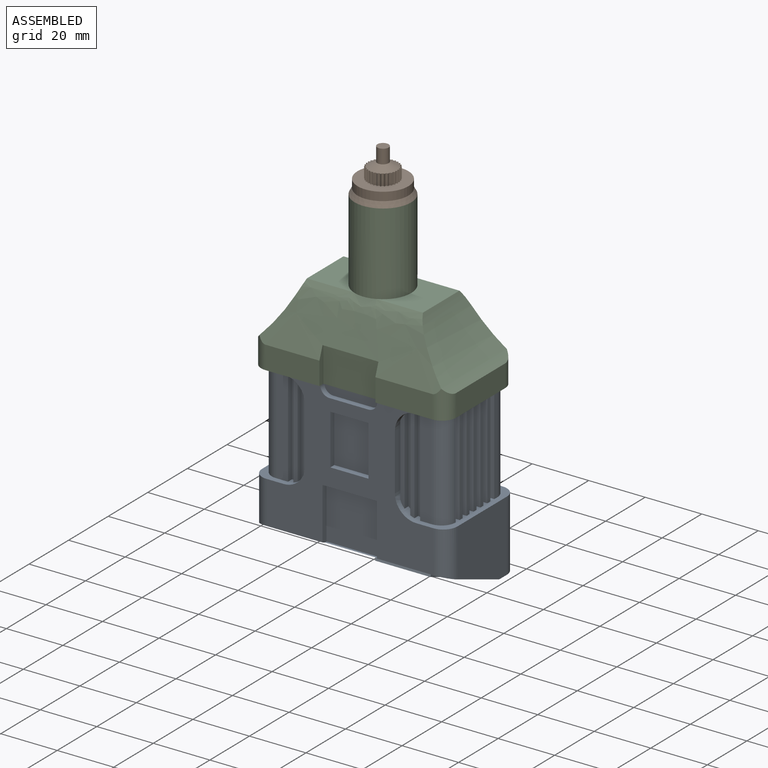
[diagram: assembled view]
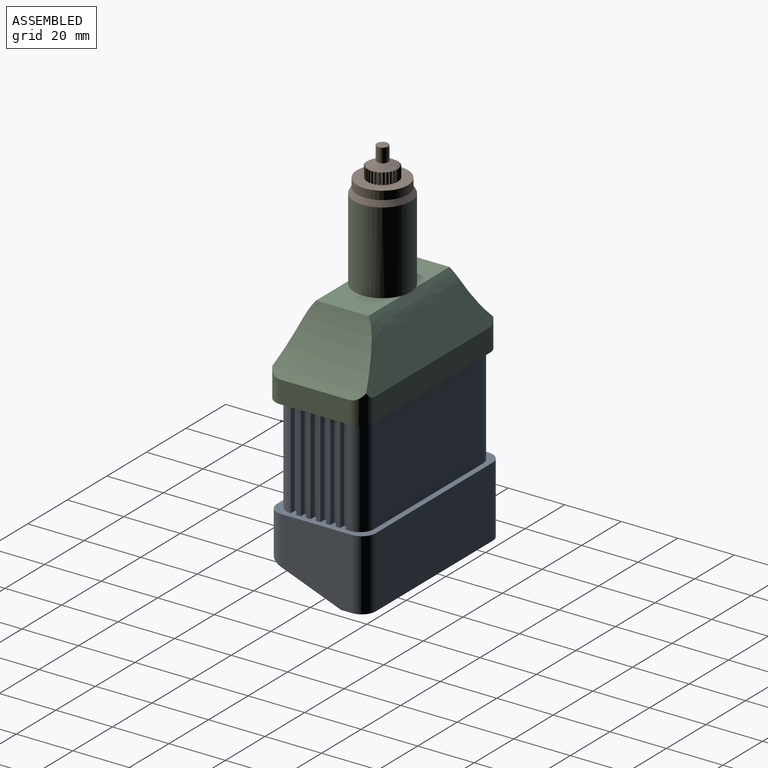
[diagram: assembled view, second angle]
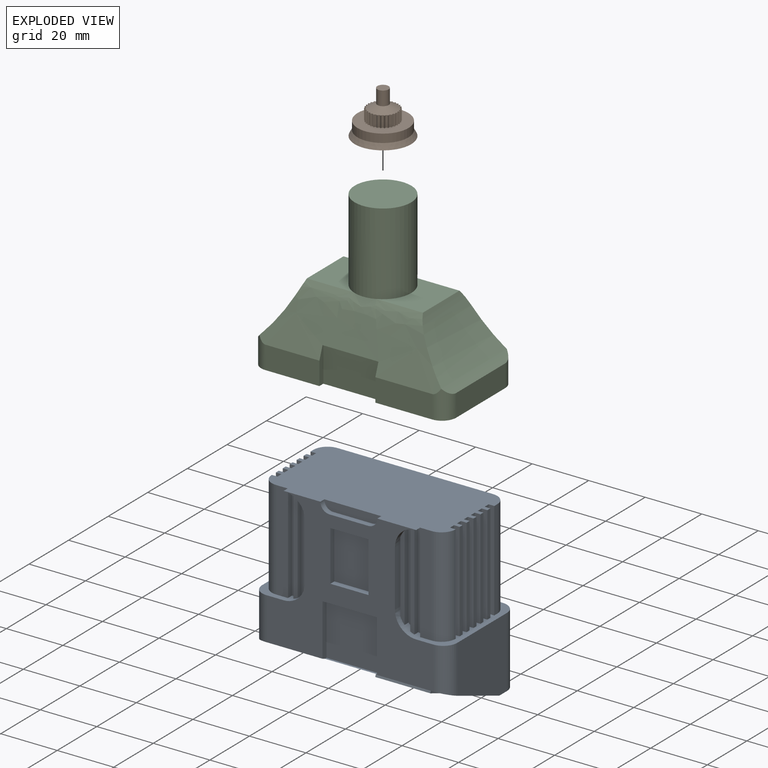
[diagram: exploded view]
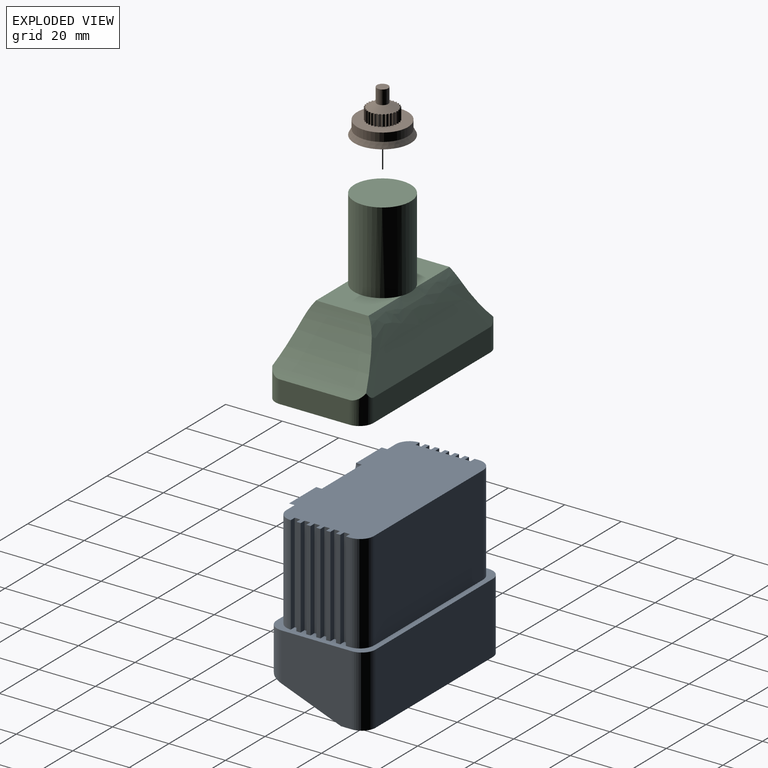
[diagram: exploded view, second angle]
ASSEMBLY  parts=3 mates=2
PART A: 153 faces, bbox 69.1x35x61.1 mm
  f0: plane 35x1.5mm, normal (1,0,0), area 52.5mm2, adj f25,f27,f148,f150
  f1: plane 35x1.5mm, normal (1,0,0), area 52.5mm2, adj f25,f27,f145,f147
  f2: plane 35x1.5mm, normal (1,0,0), area 52.5mm2, adj f25,f27,f142,f144
  f3: plane 35x1.5mm, normal (1,0,0), area 52.5mm2, adj f25,f27,f139,f141
  f4: plane 35x1.5mm, normal (1,0,0), area 52.5mm2, adj f25,f27,f135,f138
  f5: plane 35x1.5mm, normal (1,0,0), area 52.5mm2, adj f25,f27,f116,f136
  f6: plane 35x1.5mm, normal (-1,0,0), area 52.5mm2, adj f25,f27,f115,f132
  f7: plane 35x1.5mm, normal (-1,0,0), area 52.5mm2, adj f25,f27,f129,f133
  f8: plane 35x1.5mm, normal (-1,0,0), area 52.5mm2, adj f25,f27,f126,f130
  f9: plane 35x1.5mm, normal (-1,0,0), area 52.5mm2, adj f25,f27,f123,f127
  f10: plane 35x1.5mm, normal (-1,0,0), area 52.5mm2, adj f25,f27,f120,f124
  f11: plane 35x1.5mm, normal (-1,0,0), area 52.5mm2, adj f25,f27,f117,f121
  f12: plane 35x6.1mm, normal (0,-1,0), area 143.9mm2, adj f25,f27,f30,f110,f111,f112
  f13: plane 34.46x1.5mm, normal (0,-1,0), area 50.9mm2, adj f28,f30,f107,f113
  f14: plane 30.2x1.5mm, normal (0,-1,0), area 42.2mm2, adj f28,f30,f105,f108
  f15: plane 30.2x1.5mm, normal (0,-1,0), area 42.2mm2, adj f31,f33,f99,f102
  f16: plane 34.46x1.5mm, normal (0,-1,0), area 50.9mm2, adj f31,f33,f96,f101
  f17: plane 2x0.47mm, normal (0,0.93,-0.36), area 1mm2, adj f19,f23,f85,f89
  f18: plane 2x0.47mm, normal (0,-0.93,0.36), area 1mm2, adj f19,f23,f85,f89
  f19: plane 4.84x2.24mm, normal (-1,0,0), area 2.5mm2, adj f17,f18,f23,f89
  f20: plane 14.39x7.3mm, normal (0,-0.36,-0.93), area 112.4mm2, adj f85,f86,f87,f88
  f21: plane 69.05x8.82mm, normal (0,0,-1), area 471.6mm2, adj f23,f48,f49,f50,f51,f53,f54,f55
  f22: plane 59.05x50.03mm, normal (0,-1,0), area 1396.5mm2, adj f23,f25,f27,f28,f29,f30,f31,f32
  f23: plane 69.05x26.18mm, normal (0,-0.36,-0.93), area 1304.2mm2, adj f17,f18,f19,f21,f22,f39,f41,f42
  f24: plane 35x4.22mm, normal (0,-1,0), area 147.7mm2, adj f25,f27,f31,f33,f97,f104
  f25: plane 65.05x33mm, normal (0,0,1), area 2000.5mm2, adj f0,f1,f2,f3,f4,f5,f6,f7
  f26: plane 55.05x35mm, normal (0,1,0), area 1926.8mm2, adj f25,f27,f115,f116
  f27: plane 69.05x35mm, normal (0,0,1), area 354.5mm2, adj f0,f1,f2,f3,f4,f5,f6,f7
  f28: cylinder r=7.5mm len=7.5mm, axis (0,1,0), area 38.2mm2, adj f13,f14,f22,f27,f29,f105,f106,f107
  f29: plane 20x4mm, normal (1,0,0), area 80mm2, adj f22,f28,f30,f106
  f30: cylinder r=7.5mm len=7.5mm, axis (0,1,0), area 34.1mm2, adj f12,f13,f14,f22,f25,f29,f105,f106
  f31: cylinder r=7.5mm len=7.5mm, axis (0,1,0), area 37.9mm2, adj f15,f16,f22,f24,f25,f32,f96,f97
  f32: plane 20x4mm, normal (-1,0,0), area 80mm2, adj f22,f31,f33,f100
  f33: cylinder r=7.5mm len=7.5mm, axis (0,1,0), area 37.9mm2, adj f15,f16,f22,f24,f27,f32,f96,f97
  f34: plane 17.8x2mm, normal (1,0,0), area 35.6mm2, adj f22,f35,f37,f38
  f35: plane 13.5x2mm, normal (0,0,1), area 27mm2, adj f22,f34,f36,f38
  f36: plane 17.8x2mm, normal (-1,0,0), area 35.6mm2, adj f22,f35,f37,f38
  f37: plane 13.5x2mm, normal (0,0,-1), area 27mm2, adj f22,f34,f36,f38
  f38: plane 17.8x13.5mm, normal (0,-1,0), area 240.3mm2, adj f34,f35,f36,f37
  f39: plane 18.85x2mm, normal (-1,0,0), area 37.4mm2, adj f22,f23,f40,f42,f43
  f40: plane 19.25x2mm, normal (0,0,-1), area 38.5mm2, adj f22,f39,f41,f43
  f41: plane 18.85x2mm, normal (1,0,0), area 37.4mm2, adj f22,f23,f40,f42,f43
  f42: plane 19.25x0.77mm, normal (0,0,1), area 14.9mm2, adj f23,f39,f41,f43
  f43: plane 19.25x18.85mm, normal (0,-1,0), area 362.9mm2, adj f39,f40,f41,f42
  f44: cylinder r=3.2mm len=3.2mm, axis (0,-1,0), area 10.1mm2, adj f22,f25,f45,f47
  f45: plane 13.76x2mm, normal (0,0,1), area 27.5mm2, adj f22,f44,f46,f47
  f46: cylinder r=3.2mm len=3.2mm, axis (0,-1,0), area 10.1mm2, adj f22,f25,f45,f47
  f47: plane 20.16x3.2mm, normal (0,-1,0), area 60.1mm2, adj f25,f44,f45,f46
  f48: plane 6.65x5mm, normal (0,-1,0), area 33.3mm2, adj f21,f49,f51,f52
  f49: cylinder r=1.43mm len=5mm, axis (0,0,-1), area 22.4mm2, adj f21,f48,f50,f52
  f50: plane 6.65x5mm, normal (0,1,0), area 33.3mm2, adj f21,f49,f51,f52
  f51: cylinder r=1.43mm len=5mm, axis (0,0,-1), area 22.4mm2, adj f21,f48,f50,f52
  f52: plane 9.5x2.85mm, normal (0,0,-1), area 25.3mm2, adj f48,f49,f50,f51
  f53: plane 6.65x5mm, normal (0,-1,0), area 33.3mm2, adj f21,f54,f56,f57
  f54: cylinder r=1.43mm len=5mm, axis (0,0,-1), area 22.4mm2, adj f21,f53,f55,f57
  f55: plane 6.65x5mm, normal (0,1,0), area 33.3mm2, adj f21,f54,f56,f57
  f56: cylinder r=1.43mm len=5mm, axis (0,0,-1), area 22.4mm2, adj f21,f53,f55,f57
  f57: plane 9.5x2.85mm, normal (0,0,-1), area 25.3mm2, adj f53,f54,f55,f56
  f58: plane 6.65x5mm, normal (0,-1,0), area 33.3mm2, adj f21,f59,f61,f62
  f59: cylinder r=1.43mm len=5mm, axis (0,0,-1), area 22.4mm2, adj f21,f58,f60,f62
  f60: plane 6.65x5mm, normal (0,1,0), area 33.3mm2, adj f21,f59,f61,f62
  f61: cylinder r=1.43mm len=5mm, axis (0,0,-1), area 22.4mm2, adj f21,f58,f60,f62
  f62: plane 9.5x2.85mm, normal (0,0,-1), area 25.3mm2, adj f58,f59,f60,f61
  f63: plane 6.65x5mm, normal (0,-1,0), area 33.2mm2, adj f21,f64,f66,f67
  f64: cylinder r=1.43mm len=5mm, axis (0,0,-1), area 22.4mm2, adj f21,f63,f65,f67
  f65: plane 6.65x5mm, normal (0,1,0), area 33.2mm2, adj f21,f64,f66,f67
  f66: cylinder r=1.43mm len=5mm, axis (0,0,-1), area 22.4mm2, adj f21,f63,f65,f67
  f67: plane 9.5x2.85mm, normal (0,0,-1), area 25.3mm2, adj f63,f64,f65,f66
  f68: plane 6.65x5mm, normal (0,-1,0), area 33.3mm2, adj f21,f69,f71,f72
  f69: cylinder r=1.43mm len=5mm, axis (0,0,-1), area 22.4mm2, adj f21,f68,f70,f72
  f70: plane 6.65x5mm, normal (0,1,0), area 33.3mm2, adj f21,f69,f71,f72
  f71: cylinder r=1.43mm len=5mm, axis (0,0,-1), area 22.4mm2, adj f21,f68,f70,f72
  f72: plane 9.5x2.85mm, normal (0,0,-1), area 25.3mm2, adj f68,f69,f70,f71
  f73: plane 25x25mm, normal (-1,0,0), area 539.6mm2, adj f21,f23,f27,f93,f95
  f74: plane 25x25mm, normal (1,0,0), area 539.6mm2, adj f21,f23,f27,f92,f94
  f75: plane 59.05x25mm, normal (0,1,0), area 1476.3mm2, adj f21,f27,f92,f93
  f76: plane 6.58x0.93mm, normal (0,0.93,-0.36), area 6.6mm2, adj f23,f77,f83,f84
  f77: plane 2.4x2.11mm, normal (-1,0,0), area 3mm2, adj f23,f76,f78,f90,f91
  f78: plane 6.35x1.4mm, normal (0,0.93,-0.36), area 9.5mm2, adj f23,f77,f79,f91
  f79: plane 2.4x2.11mm, normal (1,0,0), area 3mm2, adj f23,f78,f80,f90,f91
  f80: plane 6.58x0.93mm, normal (0,0.93,-0.36), area 6.6mm2, adj f23,f79,f81,f84
  f81: plane 22.32x9.3mm, normal (1,0,0), area 23.5mm2, adj f23,f80,f82,f84
  f82: plane 19.5x0.93mm, normal (0,-0.93,0.36), area 19.5mm2, adj f23,f81,f83,f84
  f83: plane 22.32x9.3mm, normal (-1,0,0), area 23.5mm2, adj f23,f76,f82,f84
  f84: plane 21.96x19.5mm, normal (0,-0.36,-0.93), area 458.3mm2, adj f76,f80,f81,f82,f83,f90
  f85: plane 14.75x6.41mm, normal (-1,0,0), area 12.9mm2, adj f17,f18,f20,f23,f86,f88,f89
  f86: plane 7.3x0.93mm, normal (0,0.93,-0.36), area 7.3mm2, adj f20,f23,f85,f87
  f87: plane 14.75x6.41mm, normal (1,0,0), area 15.4mm2, adj f20,f23,f86,f88
  f88: plane 7.3x0.93mm, normal (0,-0.93,0.36), area 7.3mm2, adj f20,f23,f85,f87
  f89: plane 4.66x2mm, normal (0,-0.36,-0.93), area 10mm2, adj f17,f18,f19,f85
  f90: plane 6.35x0.47mm, normal (0,-0.93,0.36), area 3.2mm2, adj f77,f79,f84,f91
  f91: plane 6.35x1.87mm, normal (0,-0.36,-0.93), area 12.7mm2, adj f77,f78,f79,f90
  f92: cylinder r=5mm len=25mm, axis (0,0,-1), area 196.3mm2, adj f21,f27,f74,f75
  f93: cylinder r=5mm len=25mm, axis (0,0,-1), area 196.3mm2, adj f21,f27,f73,f75
  f94: cylinder r=5mm len=16.94mm, axis (0,0,-1), area 123.5mm2, adj f22,f23,f27,f74
  f95: cylinder r=5mm len=16.94mm, axis (0,0,-1), area 123.5mm2, adj f22,f23,f27,f73
  f96: plane 34.46x2mm, normal (-1,0,0), area 68.9mm2, adj f16,f31,f33,f98
  f97: plane 35x2mm, normal (1,0,0), area 70mm2, adj f24,f31,f33,f98
  f98: plane 35x1.88mm, normal (0,-1,0), area 65.5mm2, adj f31,f33,f96,f97
  f99: plane 25.39x2mm, normal (1,0,0), area 50.8mm2, adj f15,f31,f33,f100
  f100: plane 25.39x0.5mm, normal (0,-1,0), area 11.8mm2, adj f31,f32,f33,f99
  f101: plane 33.27x2mm, normal (1,0,0), area 66.5mm2, adj f16,f31,f33,f103
  f102: plane 30.2x2mm, normal (-1,0,0), area 60.4mm2, adj f15,f31,f33,f103
  f103: plane 33.27x2mm, normal (0,-1,0), area 63.8mm2, adj f31,f33,f101,f102
  f104: cylinder r=5mm len=35mm, axis (0,0,1), area 274.9mm2, adj f24,f25,f27,f118
  f105: plane 25.39x2mm, normal (-1,0,0), area 50.8mm2, adj f14,f28,f30,f106
  f106: plane 25.39x0.5mm, normal (0,-1,0), area 11.8mm2, adj f28,f29,f30,f105
  f107: plane 33.27x2mm, normal (-1,0,0), area 66.5mm2, adj f13,f28,f30,f109
  f108: plane 30.2x2mm, normal (1,0,0), area 60.4mm2, adj f14,f28,f30,f109
  f109: plane 33.27x2mm, normal (0,-1,0), area 63.8mm2, adj f28,f30,f107,f108
  f110: cylinder r=5mm len=35mm, axis (0,0,-1), area 274.9mm2, adj f12,f25,f27,f151
  f111: plane 34.73x2mm, normal (-1,0,0), area 69.5mm2, adj f12,f28,f112,f114
  f112: plane 2x2mm, normal (0,0,-1), area 4mm2, adj f12,f111,f113,f114
  f113: plane 34.46x2mm, normal (1,0,0), area 68.9mm2, adj f13,f28,f112,f114
  f114: plane 34.73x2mm, normal (0,-1,0), area 69.3mm2, adj f28,f111,f112,f113
  f115: cylinder r=5mm len=35mm, axis (0,0,-1), area 274.9mm2, adj f6,f25,f26,f27
  f116: cylinder r=5mm len=35mm, axis (0,0,1), area 274.9mm2, adj f5,f25,f26,f27
  f117: plane 35x2mm, normal (0,-1,0), area 70mm2, adj f11,f25,f27,f119
  f118: plane 35x2mm, normal (0,1,0), area 70mm2, adj f25,f27,f104,f119
  f119: plane 35x2mm, normal (-1,0,0), area 70mm2, adj f25,f27,f117,f118
  f120: plane 35x2mm, normal (0,-1,0), area 70mm2, adj f10,f25,f27,f122
  f121: plane 35x2mm, normal (0,1,0), area 70mm2, adj f11,f25,f27,f122
  f122: plane 35x2mm, normal (-1,0,0), area 70mm2, adj f25,f27,f120,f121
  f123: plane 35x2mm, normal (0,-1,0), area 70mm2, adj f9,f25,f27,f125
  f124: plane 35x2mm, normal (0,1,0), area 70mm2, adj f10,f25,f27,f125
  f125: plane 35x2mm, normal (-1,0,0), area 70mm2, adj f25,f27,f123,f124
  f126: plane 35x2mm, normal (0,-1,0), area 70mm2, adj f8,f25,f27,f128
  f127: plane 35x2mm, normal (0,1,0), area 70mm2, adj f9,f25,f27,f128
  f128: plane 35x2mm, normal (-1,0,0), area 70mm2, adj f25,f27,f126,f127
  f129: plane 35x2mm, normal (0,-1,0), area 70mm2, adj f7,f25,f27,f131
  f130: plane 35x2mm, normal (0,1,0), area 70mm2, adj f8,f25,f27,f131
  f131: plane 35x2mm, normal (-1,0,0), area 70mm2, adj f25,f27,f129,f130
  f132: plane 35x2mm, normal (0,-1,0), area 70mm2, adj f6,f25,f27,f134
  f133: plane 35x2mm, normal (0,1,0), area 70mm2, adj f7,f25,f27,f134
  f134: plane 35x2mm, normal (-1,0,0), area 70mm2, adj f25,f27,f132,f133
  f135: plane 35x2mm, normal (0,1,0), area 70mm2, adj f4,f25,f27,f137
  f136: plane 35x2mm, normal (0,-1,0), area 70mm2, adj f5,f25,f27,f137
  f137: plane 35x2mm, normal (1,0,0), area 70mm2, adj f25,f27,f135,f136
  f138: plane 35x2mm, normal (0,-1,0), area 70mm2, adj f4,f25,f27,f140
  f139: plane 35x2mm, normal (0,1,0), area 70mm2, adj f3,f25,f27,f140
  f140: plane 35x2mm, normal (1,0,0), area 70mm2, adj f25,f27,f138,f139
  f141: plane 35x2mm, normal (0,-1,0), area 70mm2, adj f3,f25,f27,f143
  f142: plane 35x2mm, normal (0,1,0), area 70mm2, adj f2,f25,f27,f143
  f143: plane 35x2mm, normal (1,0,0), area 70mm2, adj f25,f27,f141,f142
  f144: plane 35x2mm, normal (0,-1,0), area 70mm2, adj f2,f25,f27,f146
  f145: plane 35x2mm, normal (0,1,0), area 70mm2, adj f1,f25,f27,f146
  f146: plane 35x2mm, normal (1,0,0), area 70mm2, adj f25,f27,f144,f145
  f147: plane 35x2mm, normal (0,-1,0), area 70mm2, adj f1,f25,f27,f149
  f148: plane 35x2mm, normal (0,1,0), area 70mm2, adj f0,f25,f27,f149
  f149: plane 35x2mm, normal (1,0,0), area 70mm2, adj f25,f27,f147,f148
  f150: plane 35x2mm, normal (0,-1,0), area 70mm2, adj f0,f25,f27,f152
  f151: plane 35x2mm, normal (0,1,0), area 70mm2, adj f25,f27,f110,f152
  f152: plane 35x2mm, normal (1,0,0), area 70mm2, adj f25,f27,f150,f151
PART B: 186 faces, bbox 20x20x15.4 mm
  f0: plane 0.53x0.47mm, normal (0,0,1), area 0.1mm2, adj f119,f120,f133
  f1: plane 0.51x0.51mm, normal (0,0,1), area 0.1mm2, adj f116,f117,f131
  f2: plane 0.54x0.47mm, normal (0,0,1), area 0.1mm2, adj f113,f114,f129
  f3: plane 0.54x0.47mm, normal (0,0,1), area 0.1mm2, adj f110,f111,f127
  f4: plane 0.51x0.51mm, normal (0,0,1), area 0.1mm2, adj f107,f108,f125
  f5: plane 0.52x0.47mm, normal (0,0,1), area 0.1mm2, adj f104,f105,f183
  f6: plane 0.51x0.51mm, normal (0,0,1), area 0.1mm2, adj f101,f102,f181
  f7: plane 0.53x0.47mm, normal (0,0,1), area 0.1mm2, adj f98,f99,f179
  f8: plane 0.52x0.49mm, normal (0,0,1), area 0.1mm2, adj f95,f96,f177
  f9: plane 0.53x0.5mm, normal (0,0,1), area 0.1mm2, adj f92,f93,f175
  f10: plane 0.54x0.45mm, normal (0,0,1), area 0.1mm2, adj f89,f90,f173
  f11: plane 0.53x0.49mm, normal (0,0,1), area 0.1mm2, adj f86,f87,f171
  f12: plane 0.51x0.49mm, normal (0,0,1), area 0.1mm2, adj f83,f84,f169
  f13: plane 0.51x0.49mm, normal (0,0,1), area 0.1mm2, adj f80,f81,f167
  f14: plane 0.52x0.49mm, normal (0,0,1), area 0.1mm2, adj f77,f78,f165
  f15: plane 0.53x0.47mm, normal (0,0,1), area 0.1mm2, adj f74,f75,f163
  f16: plane 0.51x0.51mm, normal (0,0,1), area 0.1mm2, adj f71,f72,f161
  f17: plane 0.54x0.47mm, normal (0,0,1), area 0.1mm2, adj f68,f69,f159
  f18: plane 0.54x0.47mm, normal (0,0,1), area 0.1mm2, adj f65,f66,f157
  f19: plane 0.51x0.51mm, normal (0,0,1), area 0.1mm2, adj f62,f63,f155
  f20: plane 0.52x0.47mm, normal (0,0,1), area 0.1mm2, adj f59,f60,f153
  f21: plane 0.51x0.51mm, normal (0,0,1), area 0.1mm2, adj f56,f57,f151
  f22: plane 0.53x0.47mm, normal (0,0,1), area 0.1mm2, adj f53,f54,f149
  f23: plane 0.52x0.49mm, normal (0,0,1), area 0.1mm2, adj f50,f51,f147
  f24: plane 0.53x0.5mm, normal (0,0,1), area 0.1mm2, adj f47,f48,f145
  f25: plane 0.54x0.45mm, normal (0,0,1), area 0.1mm2, adj f44,f45,f143
  f26: plane 0.53x0.49mm, normal (0,0,1), area 0.1mm2, adj f41,f42,f141
  f27: plane 0.51x0.49mm, normal (0,0,1), area 0.1mm2, adj f38,f39,f139
  f28: plane 0.51x0.49mm, normal (0,0,1), area 0.1mm2, adj f35,f36,f137
  f29: plane 20x20mm, normal (0,0,-1), area 314.2mm2, adj f30
  f30: cone r=10mm half-angle=27.8deg, axis (0,0,-1), area 128.2mm2, adj f29,f31
  f31: cylinder r=9mm len=18mm, axis (0,0,-1), area 169.6mm2, adj f30,f32
  f32: plane 18x18mm, normal (0,0,1), area 172.4mm2, adj f31,f33,f34,f35,f36,f37,f38,f39
  f33: plane 4x0.49mm, normal (0.31,0.95,0), area 2.1mm2, adj f32,f34,f122,f123
  f34: cylinder r=5mm len=4mm, axis (0,0,-1), area 2.1mm2, adj f32,f33,f35,f136
  f35: plane 4x0.44mm, normal (0.81,-0.59,0), area 2.2mm2, adj f28,f32,f34,f36
  f36: plane 4x0.51mm, normal (0.1,0.99,0), area 2.1mm2, adj f28,f32,f35,f37
  f37: cylinder r=5mm len=4mm, axis (0,0,-1), area 2.1mm2, adj f32,f36,f38,f138
  f38: plane 4x0.49mm, normal (0.91,-0.41,0), area 2.2mm2, adj f27,f32,f37,f39
  f39: plane 4x0.51mm, normal (-0.1,0.99,0), area 2.1mm2, adj f27,f32,f38,f40
  f40: cylinder r=5mm len=4mm, axis (0,0,-1), area 2.1mm2, adj f32,f39,f41,f140
  f41: plane 4x0.53mm, normal (0.98,-0.21,0), area 2.2mm2, adj f26,f32,f40,f42
  f42: plane 4x0.49mm, normal (-0.31,0.95,0), area 2.1mm2, adj f26,f32,f41,f43
  f43: cylinder r=5mm len=4mm, axis (0,0,-1), area 2.1mm2, adj f32,f42,f44,f142
  f44: plane 4x0.54mm, normal (1,0,0), area 2.2mm2, adj f25,f32,f43,f45
  f45: plane 4x0.45mm, normal (-0.5,0.87,0), area 2.1mm2, adj f25,f32,f44,f46
  f46: cylinder r=5mm len=4mm, axis (0,0,-1), area 2.1mm2, adj f32,f45,f47,f144
  f47: plane 4x0.53mm, normal (0.98,0.21,0), area 2.2mm2, adj f24,f32,f46,f48
  f48: plane 4x0.38mm, normal (-0.67,0.74,0), area 2.1mm2, adj f24,f32,f47,f49
  f49: cylinder r=5mm len=4mm, axis (0,0,-1), area 2.1mm2, adj f32,f48,f50,f146
  f50: plane 4x0.49mm, normal (0.91,0.41,0), area 2.2mm2, adj f23,f32,f49,f51
  f51: plane 4x0.42mm, normal (-0.81,0.59,0), area 2.1mm2, adj f23,f32,f50,f52
  f52: cylinder r=5mm len=4mm, axis (0,0,-1), area 2.1mm2, adj f32,f51,f53,f148
  f53: plane 4x0.44mm, normal (0.81,0.59,0), area 2.2mm2, adj f22,f32,f52,f54
  f54: plane 4x0.47mm, normal (-0.91,0.41,0), area 2.1mm2, adj f22,f32,f53,f55
  f55: cylinder r=5mm len=4mm, axis (0,0,-1), area 2.1mm2, adj f32,f54,f56,f150
  f56: plane 4x0.4mm, normal (0.67,0.74,0), area 2.2mm2, adj f21,f32,f55,f57
  f57: plane 4x0.51mm, normal (-0.98,0.21,0), area 2.1mm2, adj f21,f32,f56,f58
  f58: cylinder r=5mm len=4mm, axis (0,0,-1), area 2.1mm2, adj f32,f57,f59,f152
  f59: plane 4x0.47mm, normal (0.5,0.87,0), area 2.2mm2, adj f20,f32,f58,f60
  f60: plane 4x0.52mm, normal (-1,0,0), area 2.1mm2, adj f20,f32,f59,f61
  f61: cylinder r=5mm len=4mm, axis (0,0,-1), area 2.1mm2, adj f32,f60,f62,f154
  f62: plane 4x0.51mm, normal (0.31,0.95,0), area 2.2mm2, adj f19,f32,f61,f63
  f63: plane 4x0.51mm, normal (-0.98,-0.21,0), area 2.1mm2, adj f19,f32,f62,f64
  f64: cylinder r=5mm len=4mm, axis (0,0,-1), area 2.1mm2, adj f32,f63,f65,f156
  f65: plane 4x0.54mm, normal (0.1,0.99,0), area 2.2mm2, adj f18,f32,f64,f66
  f66: plane 4x0.47mm, normal (-0.91,-0.41,0), area 2.1mm2, adj f18,f32,f65,f67
  f67: cylinder r=5mm len=4mm, axis (0,0,-1), area 2.1mm2, adj f32,f66,f68,f158
  f68: plane 4x0.54mm, normal (-0.1,0.99,0), area 2.2mm2, adj f17,f32,f67,f69
  f69: plane 4x0.42mm, normal (-0.81,-0.59,0), area 2.1mm2, adj f17,f32,f68,f70
  f70: cylinder r=5mm len=4mm, axis (0,0,-1), area 2.1mm2, adj f32,f69,f71,f160
  f71: plane 4x0.51mm, normal (-0.31,0.95,0), area 2.2mm2, adj f16,f32,f70,f72
  f72: plane 4x0.38mm, normal (-0.67,-0.74,0), area 2.1mm2, adj f16,f32,f71,f73
  f73: cylinder r=5mm len=4mm, axis (0,0,-1), area 2.1mm2, adj f32,f72,f74,f162
  f74: plane 4x0.47mm, normal (-0.5,0.87,0), area 2.2mm2, adj f15,f32,f73,f75
  f75: plane 4x0.45mm, normal (-0.5,-0.87,0), area 2.1mm2, adj f15,f32,f74,f76
  f76: cylinder r=5mm len=4mm, axis (0,0,-1), area 2.1mm2, adj f32,f75,f77,f164
  f77: plane 4x0.4mm, normal (-0.67,0.74,0), area 2.2mm2, adj f14,f32,f76,f78
  f78: plane 4x0.49mm, normal (-0.31,-0.95,0), area 2.1mm2, adj f14,f32,f77,f79
  f79: cylinder r=5mm len=4mm, axis (0,0,-1), area 2.1mm2, adj f32,f78,f80,f166
  f80: plane 4x0.44mm, normal (-0.81,0.59,0), area 2.2mm2, adj f13,f32,f79,f81
  f81: plane 4x0.51mm, normal (-0.1,-0.99,0), area 2.1mm2, adj f13,f32,f80,f82
  f82: cylinder r=5mm len=4mm, axis (0,0,-1), area 2.1mm2, adj f32,f81,f83,f168
  f83: plane 4x0.49mm, normal (-0.91,0.41,0), area 2.2mm2, adj f12,f32,f82,f84
  f84: plane 4x0.51mm, normal (0.1,-0.99,0), area 2.1mm2, adj f12,f32,f83,f85
  f85: cylinder r=5mm len=4mm, axis (0,0,-1), area 2.1mm2, adj f32,f84,f86,f170
  f86: plane 4x0.53mm, normal (-0.98,0.21,0), area 2.2mm2, adj f11,f32,f85,f87
  f87: plane 4x0.49mm, normal (0.31,-0.95,0), area 2.1mm2, adj f11,f32,f86,f88
  f88: cylinder r=5mm len=4mm, axis (0,0,-1), area 2.1mm2, adj f32,f87,f89,f172
  f89: plane 4x0.54mm, normal (-1,0,0), area 2.2mm2, adj f10,f32,f88,f90
  f90: plane 4x0.45mm, normal (0.5,-0.87,0), area 2.1mm2, adj f10,f32,f89,f91
  f91: cylinder r=5mm len=4mm, axis (0,0,-1), area 2.1mm2, adj f32,f90,f92,f174
  f92: plane 4x0.53mm, normal (-0.98,-0.21,0), area 2.2mm2, adj f9,f32,f91,f93
  f93: plane 4x0.38mm, normal (0.67,-0.74,0), area 2.1mm2, adj f9,f32,f92,f94
  f94: cylinder r=5mm len=4mm, axis (0,0,-1), area 2.1mm2, adj f32,f93,f95,f176
  f95: plane 4x0.49mm, normal (-0.91,-0.41,0), area 2.2mm2, adj f8,f32,f94,f96
  f96: plane 4x0.42mm, normal (0.81,-0.59,0), area 2.1mm2, adj f8,f32,f95,f97
  f97: cylinder r=5mm len=4mm, axis (0,0,-1), area 2.1mm2, adj f32,f96,f98,f178
  f98: plane 4x0.44mm, normal (-0.81,-0.59,0), area 2.2mm2, adj f7,f32,f97,f99
  f99: plane 4x0.47mm, normal (0.91,-0.41,0), area 2.1mm2, adj f7,f32,f98,f100
  f100: cylinder r=5mm len=4mm, axis (0,0,-1), area 2.1mm2, adj f32,f99,f101,f180
  f101: plane 4x0.4mm, normal (-0.67,-0.74,0), area 2.2mm2, adj f6,f32,f100,f102
  f102: plane 4x0.51mm, normal (0.98,-0.21,0), area 2.1mm2, adj f6,f32,f101,f103
  f103: cylinder r=5mm len=4mm, axis (0,0,-1), area 2.1mm2, adj f32,f102,f104,f182
  f104: plane 4x0.47mm, normal (-0.5,-0.87,0), area 2.2mm2, adj f5,f32,f103,f105
  f105: plane 4x0.52mm, normal (1,0,0), area 2.1mm2, adj f5,f32,f104,f106
  f106: cylinder r=5mm len=4mm, axis (0,0,-1), area 2.1mm2, adj f32,f105,f107,f124
  f107: plane 4x0.51mm, normal (-0.31,-0.95,0), area 2.2mm2, adj f4,f32,f106,f108
  f108: plane 4x0.51mm, normal (0.98,0.21,0), area 2.1mm2, adj f4,f32,f107,f109
  f109: cylinder r=5mm len=4mm, axis (0,0,-1), area 2.1mm2, adj f32,f108,f110,f126
  f110: plane 4x0.54mm, normal (-0.1,-0.99,0), area 2.2mm2, adj f3,f32,f109,f111
  f111: plane 4x0.47mm, normal (0.91,0.41,0), area 2.1mm2, adj f3,f32,f110,f112
  f112: cylinder r=5mm len=4mm, axis (0,0,-1), area 2.1mm2, adj f32,f111,f113,f128
  f113: plane 4x0.54mm, normal (0.1,-0.99,0), area 2.2mm2, adj f2,f32,f112,f114
  f114: plane 4x0.42mm, normal (0.81,0.59,0), area 2.1mm2, adj f2,f32,f113,f115
  f115: cylinder r=5mm len=4mm, axis (0,0,-1), area 2.1mm2, adj f32,f114,f116,f130
  f116: plane 4x0.51mm, normal (0.31,-0.95,0), area 2.2mm2, adj f1,f32,f115,f117
  f117: plane 4x0.38mm, normal (0.67,0.74,0), area 2.1mm2, adj f1,f32,f116,f118
  f118: cylinder r=5mm len=4mm, axis (0,0,-1), area 2.1mm2, adj f32,f117,f119,f132
  f119: plane 4x0.47mm, normal (0.5,-0.87,0), area 2.2mm2, adj f0,f32,f118,f120
  f120: plane 4x0.45mm, normal (0.5,0.87,0), area 2.1mm2, adj f0,f32,f119,f121
  f121: cylinder r=5mm len=4mm, axis (0,0,-1), area 2.1mm2, adj f32,f120,f122,f134
  f122: plane 4x0.4mm, normal (0.67,-0.74,0), area 2.2mm2, adj f32,f33,f121,f123
  f123: plane 0.52x0.49mm, normal (0,0,1), area 0.1mm2, adj f33,f122,f135
  f124: cone r=5mm half-angle=63.4deg, axis (0,0,-1), area 1.2mm2, adj f106,f125,f183,f184
  f125: cone r=5mm half-angle=63.4deg, axis (0,0,-1), area 1.2mm2, adj f4,f124,f126,f184
  f126: cone r=5mm half-angle=63.4deg, axis (0,0,-1), area 1.2mm2, adj f109,f125,f127,f184
  f127: cone r=5mm half-angle=63.4deg, axis (0,0,-1), area 1.2mm2, adj f3,f126,f128,f184
  f128: cone r=5mm half-angle=63.4deg, axis (0,0,-1), area 1.2mm2, adj f112,f127,f129,f184
  f129: cone r=5mm half-angle=63.4deg, axis (0,0,-1), area 1.2mm2, adj f2,f128,f130,f184
  f130: cone r=5mm half-angle=63.4deg, axis (0,0,-1), area 1.2mm2, adj f115,f129,f131,f184
  f131: cone r=5mm half-angle=63.4deg, axis (0,0,-1), area 1.2mm2, adj f1,f130,f132,f184
  f132: cone r=5mm half-angle=63.4deg, axis (0,0,-1), area 1.2mm2, adj f118,f131,f133,f184
  f133: cone r=5mm half-angle=63.4deg, axis (0,0,-1), area 1.2mm2, adj f0,f132,f134,f184
  f134: cone r=5mm half-angle=63.4deg, axis (0,0,-1), area 1.2mm2, adj f121,f133,f135,f184
  f135: cone r=5mm half-angle=63.4deg, axis (0,0,-1), area 1.2mm2, adj f123,f134,f136,f184
  f136: cone r=5mm half-angle=63.4deg, axis (0,0,-1), area 1.2mm2, adj f34,f135,f137,f184
  f137: cone r=5mm half-angle=63.4deg, axis (0,0,-1), area 1.2mm2, adj f28,f136,f138,f184
  f138: cone r=5mm half-angle=63.4deg, axis (0,0,-1), area 1.2mm2, adj f37,f137,f139,f184
  f139: cone r=5mm half-angle=63.4deg, axis (0,0,-1), area 1.2mm2, adj f27,f138,f140,f184
  f140: cone r=5mm half-angle=63.4deg, axis (0,0,-1), area 1.2mm2, adj f40,f139,f141,f184
  f141: cone r=5mm half-angle=63.4deg, axis (0,0,-1), area 1.2mm2, adj f26,f140,f142,f184
  f142: cone r=5mm half-angle=63.4deg, axis (0,0,-1), area 1.2mm2, adj f43,f141,f143,f184
  f143: cone r=5mm half-angle=63.4deg, axis (0,0,-1), area 1.2mm2, adj f25,f142,f144,f184
  f144: cone r=5mm half-angle=63.4deg, axis (0,0,-1), area 1.2mm2, adj f46,f143,f145,f184
  f145: cone r=5mm half-angle=63.4deg, axis (0,0,-1), area 1.2mm2, adj f24,f144,f146,f184
  f146: cone r=5mm half-angle=63.4deg, axis (0,0,-1), area 1.2mm2, adj f49,f145,f147,f184
  f147: cone r=5mm half-angle=63.4deg, axis (0,0,-1), area 1.2mm2, adj f23,f146,f148,f184
  f148: cone r=5mm half-angle=63.4deg, axis (0,0,-1), area 1.2mm2, adj f52,f147,f149,f184
  f149: cone r=5mm half-angle=63.4deg, axis (0,0,-1), area 1.2mm2, adj f22,f148,f150,f184
  f150: cone r=5mm half-angle=63.4deg, axis (0,0,-1), area 1.2mm2, adj f55,f149,f151,f184
  f151: cone r=5mm half-angle=63.4deg, axis (0,0,-1), area 1.2mm2, adj f21,f150,f152,f184
  f152: cone r=5mm half-angle=63.4deg, axis (0,0,-1), area 1.2mm2, adj f58,f151,f153,f184
  f153: cone r=5mm half-angle=63.4deg, axis (0,0,-1), area 1.2mm2, adj f20,f152,f154,f184
  f154: cone r=5mm half-angle=63.4deg, axis (0,0,-1), area 1.2mm2, adj f61,f153,f155,f184
  f155: cone r=5mm half-angle=63.4deg, axis (0,0,-1), area 1.2mm2, adj f19,f154,f156,f184
  f156: cone r=5mm half-angle=63.4deg, axis (0,0,-1), area 1.2mm2, adj f64,f155,f157,f184
  f157: cone r=5mm half-angle=63.4deg, axis (0,0,-1), area 1.2mm2, adj f18,f156,f158,f184
  f158: cone r=5mm half-angle=63.4deg, axis (0,0,-1), area 1.2mm2, adj f67,f157,f159,f184
  f159: cone r=5mm half-angle=63.4deg, axis (0,0,-1), area 1.2mm2, adj f17,f158,f160,f184
  f160: cone r=5mm half-angle=63.4deg, axis (0,0,-1), area 1.2mm2, adj f70,f159,f161,f184
  f161: cone r=5mm half-angle=63.4deg, axis (0,0,-1), area 1.2mm2, adj f16,f160,f162,f184
  f162: cone r=5mm half-angle=63.4deg, axis (0,0,-1), area 1.2mm2, adj f73,f161,f163,f184
  f163: cone r=5mm half-angle=63.4deg, axis (0,0,-1), area 1.2mm2, adj f15,f162,f164,f184
  f164: cone r=5mm half-angle=63.4deg, axis (0,0,-1), area 1.2mm2, adj f76,f163,f165,f184
  f165: cone r=5mm half-angle=63.4deg, axis (0,0,-1), area 1.2mm2, adj f14,f164,f166,f184
  f166: cone r=5mm half-angle=63.4deg, axis (0,0,-1), area 1.2mm2, adj f79,f165,f167,f184
  f167: cone r=5mm half-angle=63.4deg, axis (0,0,-1), area 1.2mm2, adj f13,f166,f168,f184
  f168: cone r=5mm half-angle=63.4deg, axis (0,0,-1), area 1.2mm2, adj f82,f167,f169,f184
  f169: cone r=5mm half-angle=63.4deg, axis (0,0,-1), area 1.2mm2, adj f12,f168,f170,f184
  f170: cone r=5mm half-angle=63.4deg, axis (0,0,-1), area 1.2mm2, adj f85,f169,f171,f184
  f171: cone r=5mm half-angle=63.4deg, axis (0,0,-1), area 1.2mm2, adj f11,f170,f172,f184
  f172: cone r=5mm half-angle=63.4deg, axis (0,0,-1), area 1.2mm2, adj f88,f171,f173,f184
  f173: cone r=5mm half-angle=63.4deg, axis (0,0,-1), area 1.2mm2, adj f10,f172,f174,f184
  f174: cone r=5mm half-angle=63.4deg, axis (0,0,-1), area 1.2mm2, adj f91,f173,f175,f184
  f175: cone r=5mm half-angle=63.4deg, axis (0,0,-1), area 1.2mm2, adj f9,f174,f176,f184
  f176: cone r=5mm half-angle=63.4deg, axis (0,0,-1), area 1.2mm2, adj f94,f175,f177,f184
  f177: cone r=5mm half-angle=63.4deg, axis (0,0,-1), area 1.2mm2, adj f8,f176,f178,f184
  f178: cone r=5mm half-angle=63.4deg, axis (0,0,-1), area 1.2mm2, adj f97,f177,f179,f184
  f179: cone r=5mm half-angle=63.4deg, axis (0,0,-1), area 1.2mm2, adj f7,f178,f180,f184
  f180: cone r=5mm half-angle=63.4deg, axis (0,0,-1), area 1.2mm2, adj f100,f179,f181,f184
  f181: cone r=5mm half-angle=63.4deg, axis (0,0,-1), area 1.2mm2, adj f6,f180,f182,f184
  f182: cone r=5mm half-angle=63.4deg, axis (0,0,-1), area 1.2mm2, adj f103,f181,f183,f184
  f183: cone r=5mm half-angle=63.4deg, axis (0,0,-1), area 1.2mm2, adj f5,f124,f182,f184
  f184: cylinder r=2mm len=5mm, axis (0,0,-1), area 62.8mm2, adj f124,f125,f126,f127,f128,f129,f130,f131
  f185: plane 4x4mm, normal (0,0,1), area 12.6mm2, adj f184
PART C: 24 faces, bbox 69x34.7x57.6 mm
  f0: extruded ~64.32x20.5mm, area 1151.3mm2, adj f2,f3,f4,f10,f15,f16,f18,f22
  f1: extruded ~64.31x20.5mm, area 1059.2mm2, adj f2,f3,f4,f5,f9,f11,f12,f13
  f2: plane 18.49x16.94mm, normal (0,0,1), area 226.1mm2, adj f0,f1,f4,f18
  f3: cylinder r=56.21mm len=33.2mm, axis (0,-1,0), area 691.9mm2, adj f0,f1,f7,f15,f20,f23
  f4: cylinder r=56.21mm len=33.2mm, axis (0,-1,0), area 691.9mm2, adj f0,f1,f2,f8,f21,f22
  f5: plane 20.12x8.13mm, normal (0,-1,0), area 163.5mm2, adj f1,f6,f12,f21
  f6: plane 69x34.73mm, normal (0,0,-1), area 2335.2mm2, adj f5,f7,f8,f9,f10,f11,f12,f14
  f7: plane 24.73x7.9mm, normal (-1,0,0), area 195.4mm2, adj f3,f6,f20,f23
  f8: plane 24.73x7.9mm, normal (1,0,0), area 195.4mm2, adj f4,f6,f21,f22
  f9: plane 19.09x8.13mm, normal (0,-1,0), area 155.2mm2, adj f1,f6,f11,f20
  f10: plane 59x8.13mm, normal (0,1,0), area 479.5mm2, adj f0,f6,f22,f23
  f11: plane 12.5x2mm, normal (1,0,0), area 21.5mm2, adj f1,f6,f9,f13,f14
  f12: plane 12.5x2mm, normal (-1,0,0), area 21.5mm2, adj f1,f5,f6,f13,f14
  f13: plane 19.79x0.42mm, normal (0,0,-1), area 8.3mm2, adj f1,f11,f12,f14
  f14: plane 19.79x12.5mm, normal (0,-1,0), area 247.4mm2, adj f6,f11,f12,f13
  f15: plane 18.49x16.94mm, normal (0,0,1), area 226.1mm2, adj f0,f1,f3,f18
  f16: plane 7.1x0.65mm, normal (0,0,-1), area 3.1mm2, adj f0,f18
  f17: plane 8.04x0.84mm, normal (0,0,-1), area 4.6mm2, adj f1,f18
  f18: cylinder r=10mm len=29mm, axis (0,0,1), area 1821.6mm2, adj f0,f1,f2,f15,f16,f17,f19
  f19: plane 20x20mm, normal (0,0,1), area 314.2mm2, adj f18
  f20: cylinder r=5mm len=10.23mm, axis (0,0,1), area 68.6mm2, adj f1,f3,f6,f7,f9
  f21: cylinder r=5mm len=10.23mm, axis (0,0,-1), area 68.6mm2, adj f1,f4,f5,f6,f8
  f22: cylinder r=5mm len=10.23mm, axis (0,0,1), area 68.6mm2, adj f0,f4,f6,f8,f10
  f23: cylinder r=5mm len=10.23mm, axis (0,0,-1), area 68.6mm2, adj f0,f3,f6,f7,f10
PLACE A t=(193.12,-10.44,7.25)mm
PLACE B rot(axis=(0,0,1),180deg) t=(193.12,-11.23,7.01)mm
PLACE C t=(193.12,-11.23,7.01)mm
MATE fastened A.f25 <-> C.f6  axis (0,0,1) through (193.13,-10.86,32.5)mm
MATE fastened B.f30 <-> C.f18  axis (0,0,-1) through (193.12,-11.23,90.11)mm
